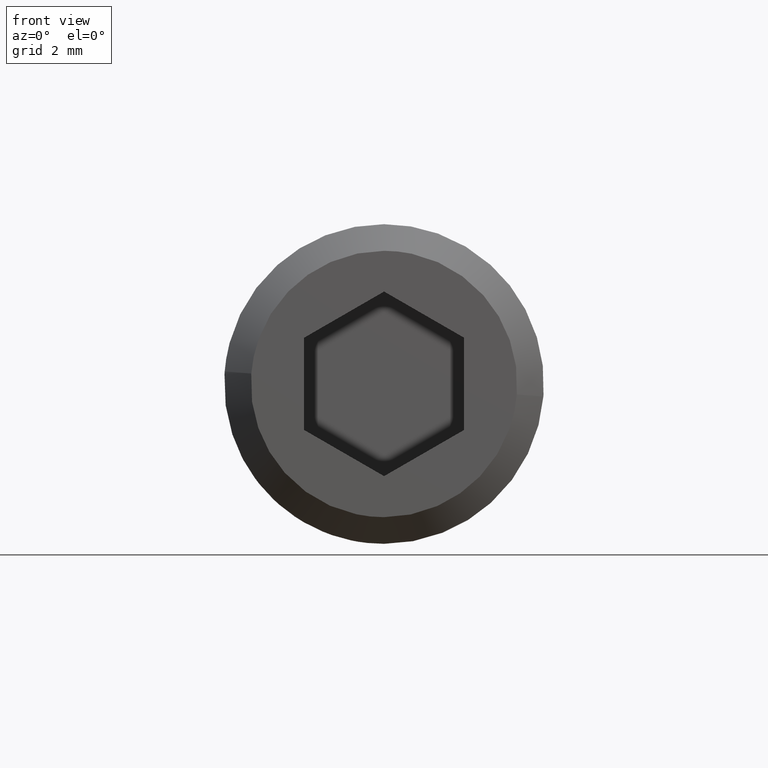
[diagram: clean part render]
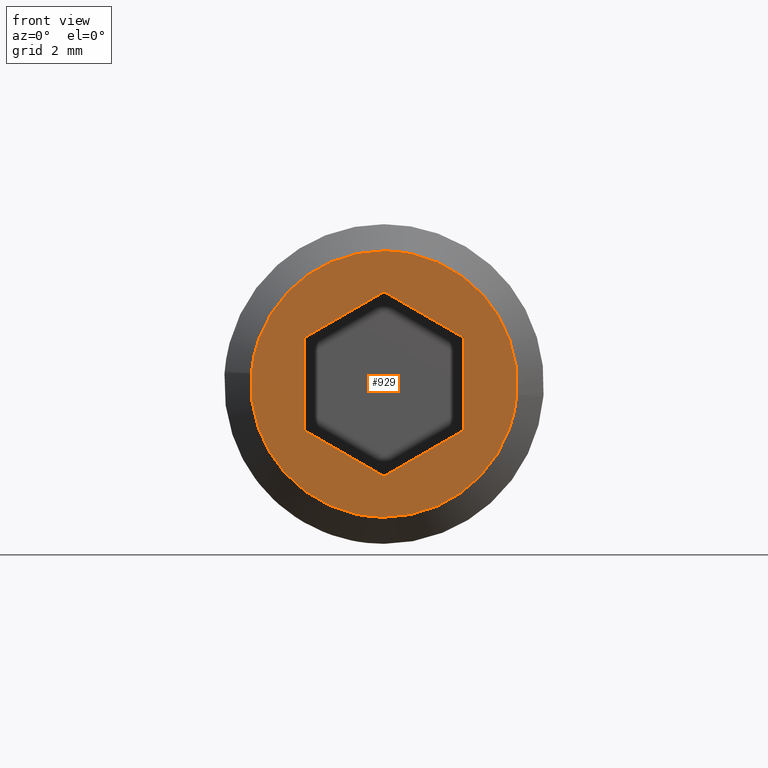
[diagram: same view with one face highlighted and labeled with its STEP entity id]
A machine part, front view. The second image highlights one B-rep face of the part: STEP entity #929.
In plain terms, the highlighted face is a freeform B-spline surface patch.
Its self-contained STEP definition (entity closure, byte-faithful):
#610=CARTESIAN_POINT('',(0.0,-9.549999999999999,-2.500000000000001));
#611=VERTEX_POINT('',#610);
#612=CARTESIAN_POINT('',(2.492293334333674,-9.549999999997848,-0.196147739336167));
#613=VERTEX_POINT('',#612);
#614=CARTESIAN_POINT('',(0.0,-9.549999999999999,-2.500000000000001));
#615=CARTESIAN_POINT('',(2.310976229115038,-9.549999999999999,-2.500000000000000));
#616=CARTESIAN_POINT('',(2.492293334333674,-9.549999999997848,-0.196147739336167));
#624=(BOUNDED_CURVE()B_SPLINE_CURVE(2,(#614,#615,#616),.UNSPECIFIED.,.F.,.U.)B_SPLINE_CURVE_WITH_KNOTS((3,3),(0.0,0.236331300630513),.UNSPECIFIED.)CURVE()GEOMETRIC_REPRESENTATION_ITEM()RATIONAL_B_SPLINE_CURVE((1.0,0.723120658607837,0.969723356167112))REPRESENTATION_ITEM(''));
#625=EDGE_CURVE('',#611,#613,#624,.T.);
#627=CARTESIAN_POINT('',(-2.492293334333675,-9.549999999997848,0.196147739336166));
#628=VERTEX_POINT('',#627);
#629=CARTESIAN_POINT('',(-2.492293334333675,-9.549999999997848,0.196147739336166));
#630=CARTESIAN_POINT('',(-2.500000000000000,-9.550000000000001,0.098225267535634));
#631=CARTESIAN_POINT('',(-2.500000000000000,-9.549999999999999,-6.765950E-016));
#632=CARTESIAN_POINT('',(-2.500000000000000,-9.549999999999999,-2.500000000000001));
#633=CARTESIAN_POINT('',(0.0,-9.549999999999999,-2.500000000000001));
#641=(BOUNDED_CURVE()B_SPLINE_CURVE(2,(#629,#630,#631,#632,#633),.UNSPECIFIED.,.F.,.U.)B_SPLINE_CURVE_WITH_KNOTS((3,2,3),(0.736331300630513,0.750000000000000,1.0),.UNSPECIFIED.)CURVE()GEOMETRIC_REPRESENTATION_ITEM()RATIONAL_B_SPLINE_CURVE((0.969723356167112,0.983986122578710,1.0,0.707106781186548,1.0))REPRESENTATION_ITEM(''));
#642=EDGE_CURVE('',#628,#611,#641,.T.);
#678=CARTESIAN_POINT('',(0.0,-9.549999999999999,2.499999999999999));
#679=VERTEX_POINT('',#678);
#680=CARTESIAN_POINT('',(2.492293334333674,-9.549999999997848,-0.196147739336167));
#681=CARTESIAN_POINT('',(2.500000000000000,-9.550000000000001,-0.098225267535635));
#682=CARTESIAN_POINT('',(2.500000000000000,-9.549999999999999,-6.765950E-016));
#683=CARTESIAN_POINT('',(2.500000000000000,-9.549999999999999,2.499999999999999));
#684=CARTESIAN_POINT('',(0.0,-9.549999999999999,2.499999999999999));
#692=(BOUNDED_CURVE()B_SPLINE_CURVE(2,(#680,#681,#682,#683,#684),.UNSPECIFIED.,.F.,.U.)B_SPLINE_CURVE_WITH_KNOTS((3,2,3),(0.236331300630513,0.250000000000000,0.500000000000000),.UNSPECIFIED.)CURVE()GEOMETRIC_REPRESENTATION_ITEM()RATIONAL_B_SPLINE_CURVE((0.969723356167112,0.983986122578710,1.0,0.707106781186548,1.0))REPRESENTATION_ITEM(''));
#693=EDGE_CURVE('',#613,#679,#692,.T.);
#700=CARTESIAN_POINT('',(0.0,-9.549999999999999,2.499999999999999));
#701=CARTESIAN_POINT('',(-2.310976229115030,-9.550000000000001,2.500000000000000));
#702=CARTESIAN_POINT('',(-2.492293334333675,-9.549999999997848,0.196147739336166));
#710=(BOUNDED_CURVE()B_SPLINE_CURVE(2,(#700,#701,#702),.UNSPECIFIED.,.F.,.U.)B_SPLINE_CURVE_WITH_KNOTS((3,3),(0.500000000000000,0.736331300630512),.UNSPECIFIED.)CURVE()GEOMETRIC_REPRESENTATION_ITEM()RATIONAL_B_SPLINE_CURVE((1.0,0.723120658607838,0.969723356167110))REPRESENTATION_ITEM(''));
#711=EDGE_CURVE('',#679,#628,#710,.T.);
#783=CARTESIAN_POINT('',(1.084202E-016,-9.549999999999999,1.732051000000000));
#784=VERTEX_POINT('',#783);
#785=CARTESIAN_POINT('',(-1.500000000000000,-9.549999999999999,0.866025000000000));
#786=VERTEX_POINT('',#785);
#787=CARTESIAN_POINT('',(1.084202E-016,-9.549999999999999,1.732051000000000));
#788=CARTESIAN_POINT('',(-1.500000000000000,-9.549999999999999,0.866025000000000));
#789=QUASI_UNIFORM_CURVE('',1,(#787,#788),.UNSPECIFIED.,.F.,.U.);
#790=EDGE_CURVE('',#784,#786,#789,.T.);
#811=CARTESIAN_POINT('',(1.500000000000000,-9.549999999999999,0.866025000000000));
#812=VERTEX_POINT('',#811);
#813=CARTESIAN_POINT('',(1.500000000000000,-9.549999999999999,0.866025000000000));
#814=CARTESIAN_POINT('',(1.084202E-016,-9.549999999999999,1.732051000000000));
#815=QUASI_UNIFORM_CURVE('',1,(#813,#814),.UNSPECIFIED.,.F.,.U.);
#816=EDGE_CURVE('',#812,#784,#815,.T.);
#833=CARTESIAN_POINT('',(1.500000000000000,-9.549999999999999,-0.866025000000000));
#834=VERTEX_POINT('',#833);
#835=CARTESIAN_POINT('',(1.500000000000000,-9.549999999999999,-0.866025000000000));
#836=CARTESIAN_POINT('',(1.500000000000000,-9.549999999999999,0.866025000000000));
#837=QUASI_UNIFORM_CURVE('',1,(#835,#836),.UNSPECIFIED.,.F.,.U.);
#838=EDGE_CURVE('',#834,#812,#837,.T.);
#855=CARTESIAN_POINT('',(0.0,-9.549999999999999,-1.732051000000000));
#856=VERTEX_POINT('',#855);
#857=CARTESIAN_POINT('',(0.0,-9.549999999999999,-1.732051000000000));
#858=CARTESIAN_POINT('',(1.500000000000000,-9.549999999999999,-0.866025000000000));
#859=QUASI_UNIFORM_CURVE('',1,(#857,#858),.UNSPECIFIED.,.F.,.U.);
#860=EDGE_CURVE('',#856,#834,#859,.T.);
#877=CARTESIAN_POINT('',(-1.500000000000000,-9.549999999999999,-0.866025000000000));
#878=VERTEX_POINT('',#877);
#879=CARTESIAN_POINT('',(-1.500000000000000,-9.549999999999999,-0.866025000000000));
#880=CARTESIAN_POINT('',(0.0,-9.549999999999999,-1.732051000000000));
#881=QUASI_UNIFORM_CURVE('',1,(#879,#880),.UNSPECIFIED.,.F.,.U.);
#882=EDGE_CURVE('',#878,#856,#881,.T.);
#899=CARTESIAN_POINT('',(-1.500000000000000,-9.549999999999999,0.866025000000000));
#900=CARTESIAN_POINT('',(-1.500000000000000,-9.549999999999999,-0.866025000000000));
#901=QUASI_UNIFORM_CURVE('',1,(#899,#900),.UNSPECIFIED.,.F.,.U.);
#902=EDGE_CURVE('',#786,#878,#901,.T.);
#910=CARTESIAN_POINT('',(-2.748986881817126,-9.549999999999999,2.749749990309029));
#911=CARTESIAN_POINT('',(-2.748986881817126,-9.549999999999999,-2.749750124419482));
#912=CARTESIAN_POINT('',(2.748987015927578,-9.549999999999999,2.749749990309029));
#913=CARTESIAN_POINT('',(2.748987015927578,-9.549999999999999,-2.749750124419482));
#914=B_SPLINE_SURFACE_WITH_KNOTS('',1,1,((#910,#912),(#911,#913)),.UNSPECIFIED.,.F.,.F.,.U.,(2,2),(2,2),(0.0,5.499500114728511),(0.0,5.497973897744704),.UNSPECIFIED.);
#915=ORIENTED_EDGE('',*,*,#625,.T.);
#916=ORIENTED_EDGE('',*,*,#693,.T.);
#917=ORIENTED_EDGE('',*,*,#711,.T.);
#918=ORIENTED_EDGE('',*,*,#642,.T.);
#919=EDGE_LOOP('',(#915,#916,#917,#918));
#920=FACE_OUTER_BOUND('',#919,.T.);
#921=ORIENTED_EDGE('',*,*,#902,.F.);
#922=ORIENTED_EDGE('',*,*,#790,.F.);
#923=ORIENTED_EDGE('',*,*,#816,.F.);
#924=ORIENTED_EDGE('',*,*,#838,.F.);
#925=ORIENTED_EDGE('',*,*,#860,.F.);
#926=ORIENTED_EDGE('',*,*,#882,.F.);
#927=EDGE_LOOP('',(#921,#922,#923,#924,#925,#926));
#928=FACE_BOUND('',#927,.T.);
#929=ADVANCED_FACE('',(#920,#928),#914,.T.);